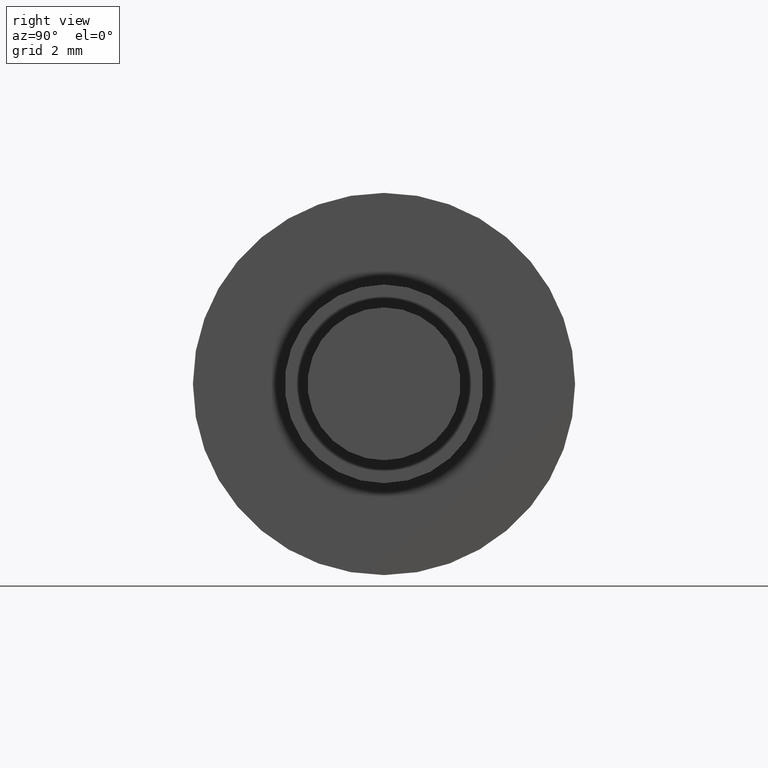
[diagram: clean part render]
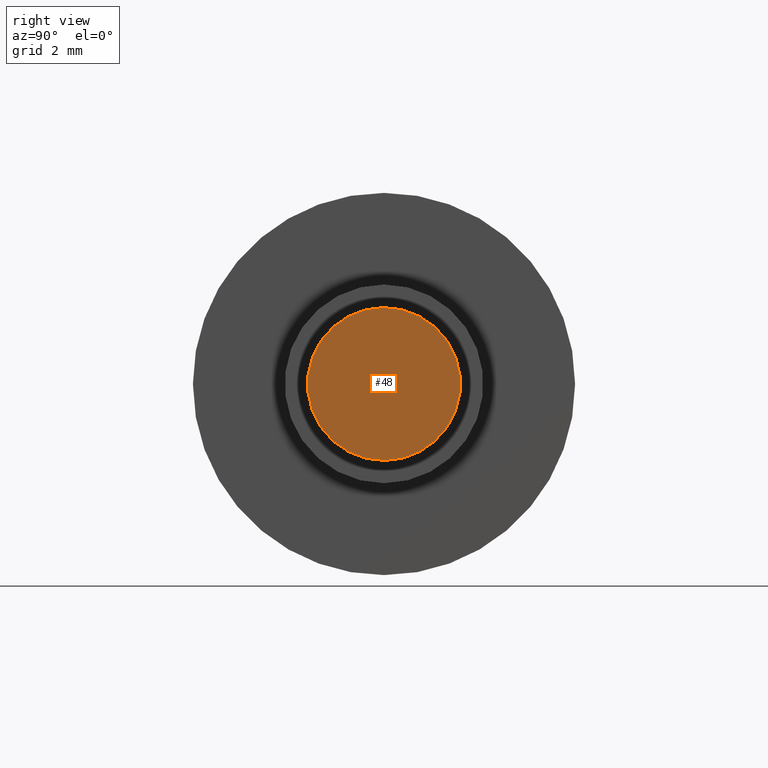
[diagram: same view with one face highlighted and labeled with its STEP entity id]
A machine part, right view. The second image highlights one B-rep face of the part: STEP entity #48.
In plain terms, the highlighted planar face has unit normal (1, 0, 0).
Its self-contained STEP definition (entity closure, byte-faithful):
#48=ADVANCED_FACE('',(#155),#154,.T.);
#154=PLANE('',#439);
#155=FACE_OUTER_BOUND('',#440,.T.);
#436=CARTESIAN_POINT('',(0.00000000000E+00,-4.15692193817E+00,2.60000000000E+00));
#437=DIRECTION('',(1.00000000000E+00,0.00000000000E+00,0.00000000000E+00));
#438=DIRECTION('',(0.00000000000E+00,0.00000000000E+00,-1.00000000000E+00));
#439=AXIS2_PLACEMENT_3D('',#436,#437,#438);
#440=EDGE_LOOP('',(#588,#589));
#588=ORIENTED_EDGE('',*,*,#747,.F.);
#589=ORIENTED_EDGE('',*,*,#748,.F.);
#747=EDGE_CURVE('',#986,#987,#988,.T.);
#748=EDGE_CURVE('',#987,#986,#994,.T.);
#986=VERTEX_POINT('',#1466);
#987=VERTEX_POINT('',#1467);
#988=CIRCLE('',#1471,2.00000000000E+00);
#994=CIRCLE('',#1475,2.00000000000E+00);
#1466=CARTESIAN_POINT('',(0.00000000000E+00,7.40148683083E-17,-2.00000000000E+00));
#1467=CARTESIAN_POINT('',(0.00000000000E+00,-4.66965875689E-16,2.00000000000E+00));
#1468=CARTESIAN_POINT('',(0.00000000000E+00,0.00000000000E+00,0.00000000000E+00));
#1469=DIRECTION('',(-1.00000000000E+00,0.00000000000E+00,0.00000000000E+00));
#1470=DIRECTION('',(-0.00000000000E+00,-1.11022302463E-16,1.00000000000E+00));
#1471=AXIS2_PLACEMENT_3D('',#1468,#1469,#1470);
#1472=CARTESIAN_POINT('',(0.00000000000E+00,0.00000000000E+00,0.00000000000E+00));
#1473=DIRECTION('',(-1.00000000000E+00,0.00000000000E+00,0.00000000000E+00));
#1474=DIRECTION('',(-0.00000000000E+00,-1.11022302463E-16,1.00000000000E+00));
#1475=AXIS2_PLACEMENT_3D('',#1472,#1473,#1474);